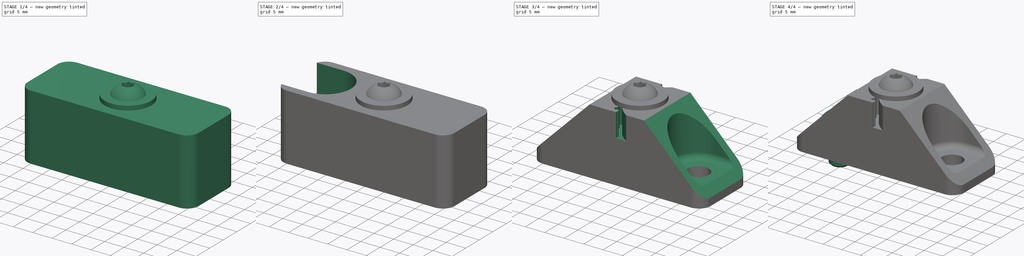
[diagram: build sequence overview — one tinted view per stage of 4, left to right]
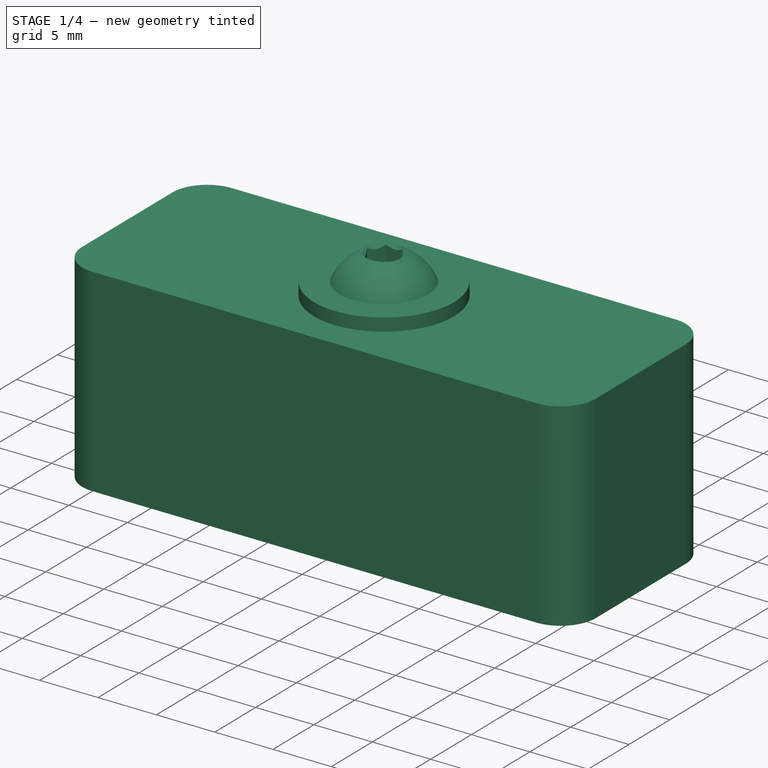
[diagram: stage 1 of 4 — iso view after this stage's code; geometry added in this stage tinted green]
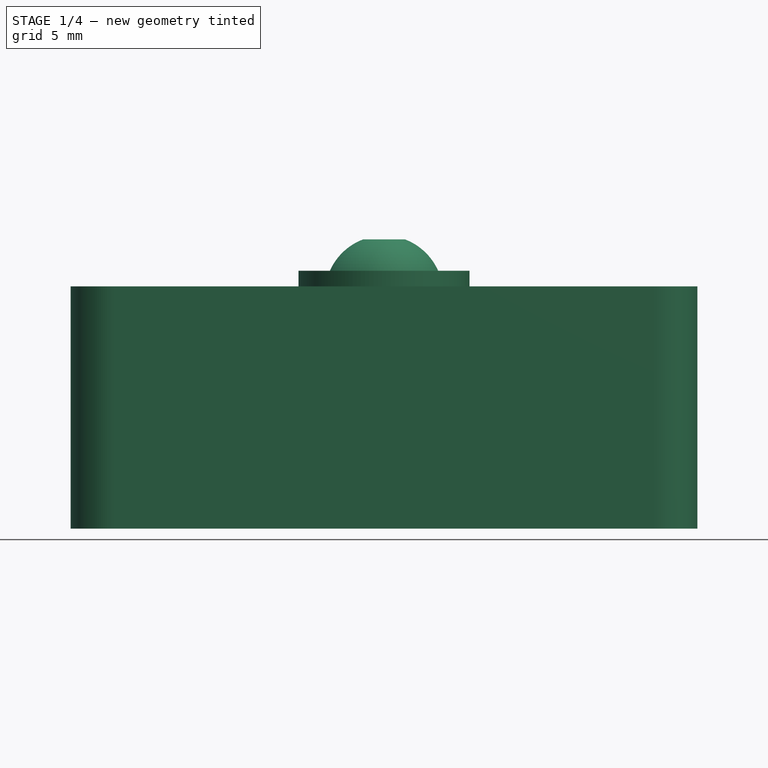
[diagram: stage 1 of 4 — front view after this stage's code; geometry added in this stage tinted green]
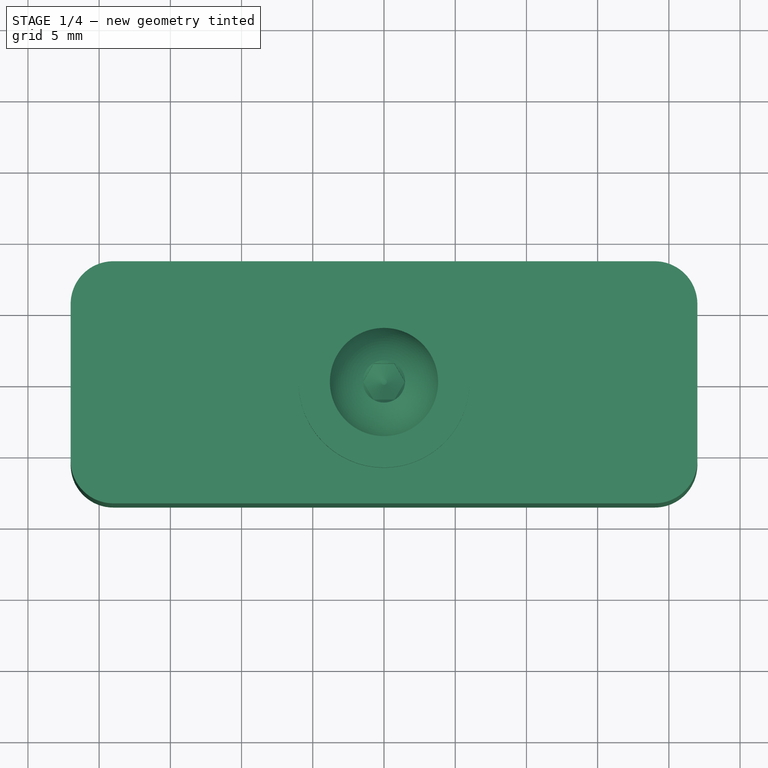
[diagram: stage 1 of 4 — top view after this stage's code; geometry added in this stage tinted green]
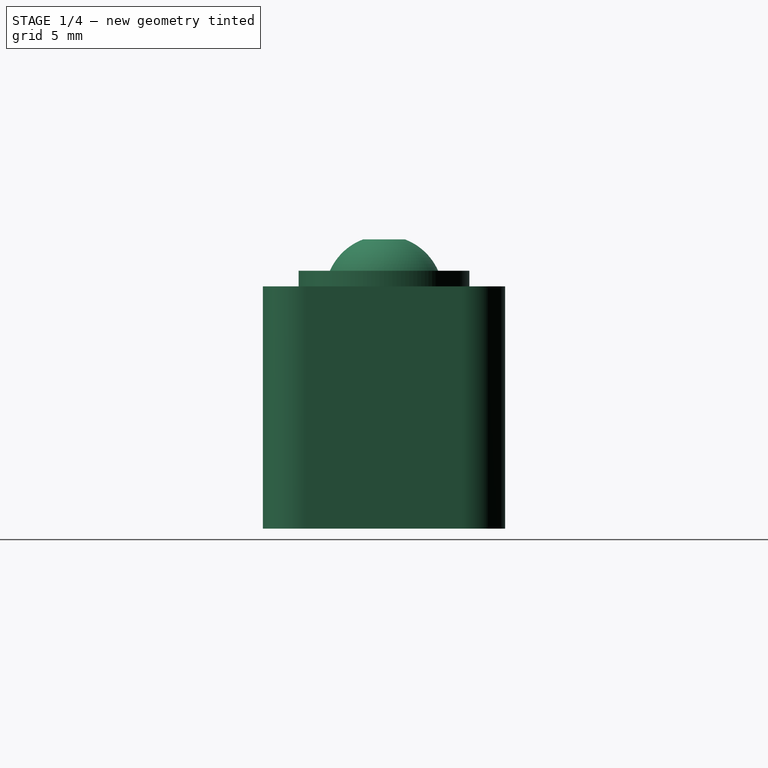
[diagram: stage 1 of 4 — right view after this stage's code; geometry added in this stage tinted green]
FCSTD DOCUMENT  (FreeCAD 0.20R29177 +426 (Git))
Label: BeltRetainerRear
License: All rights reserved
LicenseURL: http://en.wikipedia.org/wiki/All_rights_reserved
objects: Sketcher::SketchObject×7, Part::FeaturePython×6, App::DocumentObjectGroup×4, PartDesign::Pocket×3, PartDesign::Mirrored×3, PartDesign::CoordinateSystem×2, App::FeaturePython×1, PartDesign::Pad×1, PartDesign::Hole×1, PartDesign::SubtractivePipe×1, PartDesign::Line×1, PartDesign::PolarPattern×1, PartDesign::MultiTransform×1, PartDesign::Body×1, App::Part×1
note: 34 computed .brp shape members not serialized (recipe doc carries the construction recipe); baked Part::Feature solids carry a one-line shape summary decoded from their .brp

FEATURE [App::DocumentObjectGroup] Parts
FEATURE [PartDesign::CoordinateSystem] LCS_Origin
  AttacherType = Attacher::AttachEngine3D
  MapMode = 2
  Support = -> [X_Axis]
FEATURE [App::FeaturePython] Variables  # WARN: FeaturePython — macro-defined, semantics opaque (R4)
  BaseHeight = 4
  BeltCurveRadius = 10.5
  RibThickness = 2
  Type = App::PropertyContainer
FEATURE [App::DocumentObjectGroup] Constraints
FEATURE [App::DocumentObjectGroup] Configurations
FEATURE [Sketcher::SketchObject] Sketch
  FullyConstrained = true
  MapMode = 5
  Support = -> [XY_Plane001]
  sketch-geometry (10):
    g0: ArcOfCircle CenterX=-19 CenterY=5.5 CenterZ=0 NormalX=0 NormalY=0 NormalZ=1 AngleXU=0 Radius=3 StartAngle=1.5708 EndAngle=3.14159
    g1: ArcOfCircle CenterX=19 CenterY=5.5 CenterZ=0 NormalX=0 NormalY=0 NormalZ=1 AngleXU=0 Radius=3 StartAngle=0 EndAngle=1.5708
    g2: ArcOfCircle CenterX=19 CenterY=-5.5 CenterZ=0 NormalX=0 NormalY=0 NormalZ=1 AngleXU=0 Radius=3 StartAngle=4.71239 EndAngle=6.28319
    g3: LineSegment StartX=19 StartY=-8.5 StartZ=0 EndX=-19 EndY=-8.5 EndZ=0
    g4: ArcOfCircle CenterX=-19 CenterY=-5.5 CenterZ=0 NormalX=0 NormalY=0 NormalZ=1 AngleXU=0 Radius=3 StartAngle=3.14159 EndAngle=4.71239
    g5: LineSegment StartX=-22 StartY=-5.5 StartZ=0 EndX=-22 EndY=5.5 EndZ=0
    g6: GeomPoint X=-22 Y=8.5 Z=0
    g7: GeomPoint X=22 Y=-8.5 Z=0
    g8: LineSegment StartX=-19 StartY=8.5 StartZ=0 EndX=19 EndY=8.5 EndZ=0
    g9: LineSegment StartX=22 StartY=5.5 StartZ=0 EndX=22 EndY=-5.5 EndZ=0
  constraints (23):
    c: Tangent(g0,g8) = 1.5708
    c: Tangent(g9,g2) = 1.5708
    c: Tangent(g2,g3) = 1.5708
    c: Tangent(g3,g4) = 1.5708
    c: Tangent(g4,g5) = 1.5708
    c: Tangent(g5,g0) = 1.5708
    c: Horizontal(g3)
    c: Vertical(g5)
    c: Equal(g0,g1)
    c: Equal(g1,g2)
    c: Equal(g2,g4)
    c: PointOnObject(g6,g5)
    c: PointOnObject(g7,g3)
    c: Radius(g1) = 3
    c: DistanceX(g4,g9) = 44  'Width'
    c: Horizontal(g8)
    c: PointOnObject(g6,g8)
    c: Vertical(g9)
    c: PointOnObject(g7,g9)
    c: Tangent(g9,g1) = 1.5708
    c: Tangent(g8,g1) = 1.5708
    c: Symmetric(g2,g0,g-1)
    c: DistanceY(g3,g0) = 17  'Height'
FEATURE [PartDesign::Pad] Pad
  Direction = (0,0,1)
  Length = 17
  Length2 = 10
  Profile = -> Sketch
  ReferenceAxis = -> Sketch [N_Axis]
  Type = 0
FEATURE [PartDesign::Body] Body
  Group = -> [Sketch,Pad,Sketch001,Hole,Sketch002,Pocket,Sketch003,Sketch004,SubtractivePipe,MultiTransform,Mirrored,PolarPattern,LCS_1,DatumLine,Mirrored001,Sketch005,Pocket001,Mirrored002,Sketch006,Pocket002]
  Origin = -> Origin001
  Tip = -> Pocket002
FEATURE [Part::FeaturePython] Washer001  label="M4-Washer"  # Fasteners workbench fastener (typed FeaturePython)
  Placement = pos=(0,0,17) rot=(0,0,1;0rad)
  diameter = 3
  invert = false
  matchOuter = false
  offset = 0
  type = 6
FEATURE [Part::FeaturePython] Screw001  label="M4x6-Screw"  # Fasteners workbench fastener (typed FeaturePython)
  Placement = pos=(0,0,18.1) rot=(0,0,1;0rad)
  diameter = 2
  invert = false
  leftHanded = false
  length = 0
  lengthCustom = 6
  matchOuter = false
  offset = 0
  thread = false
  type = 40
FEATURE [App::DocumentObjectGroup] Fasteners
  Group = -> [Washer,Screw,Array_Washer,Array_Screw,Washer001,Screw001]
FEATURE [App::Part] Assembly
  AssemblyType = Part::Link
  Group = -> [LCS_Origin,Variables,Constraints,Configurations,Body,Fasteners,Washer,Array_Washer,Screw,Array_Screw,Washer001,Screw001]
  Origin = -> Origin
  Type = Assembly
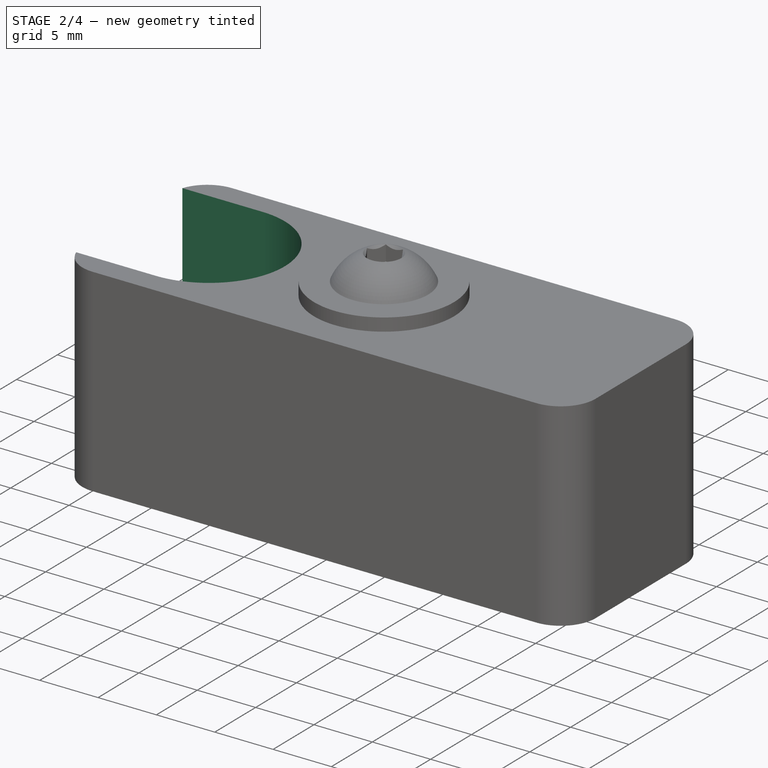
[diagram: stage 2 of 4 — iso view after this stage's code; geometry added in this stage tinted green]
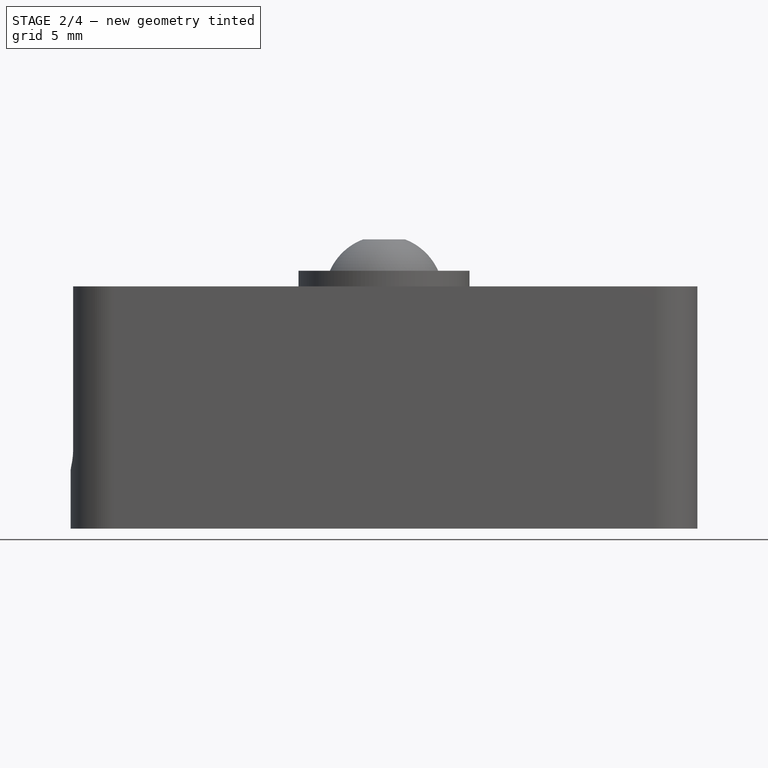
[diagram: stage 2 of 4 — front view after this stage's code; geometry added in this stage tinted green]
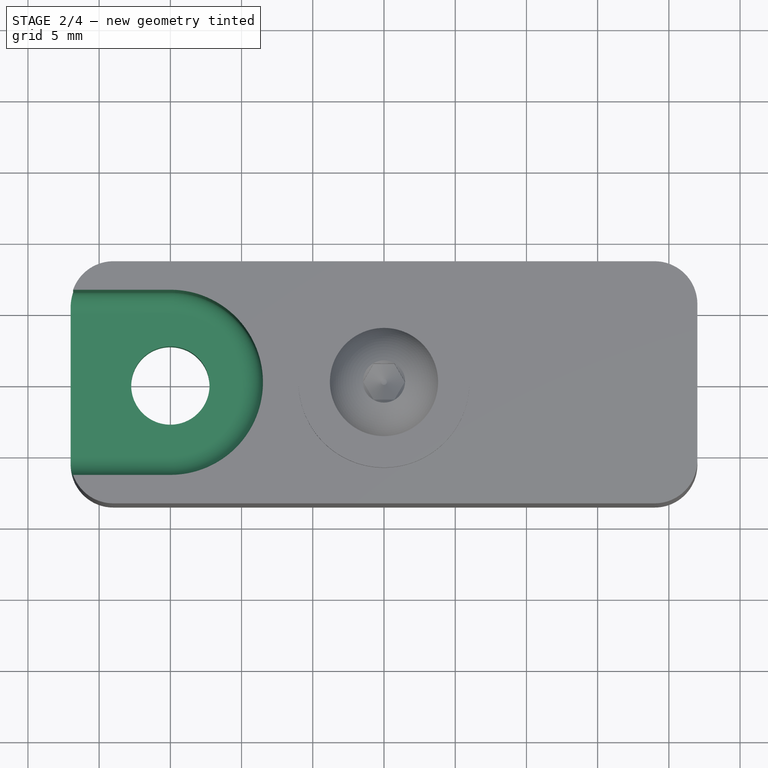
[diagram: stage 2 of 4 — top view after this stage's code; geometry added in this stage tinted green]
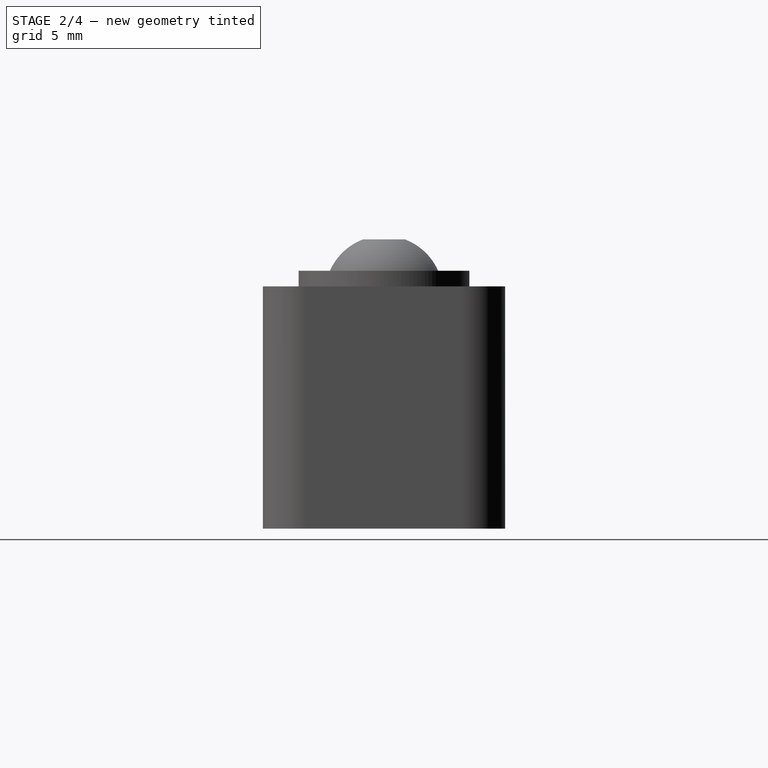
[diagram: stage 2 of 4 — right view after this stage's code; geometry added in this stage tinted green]
FEATURE [Sketcher::SketchObject] Sketch001
  AttachmentOffset = pos=(0,0,4) rot=(0,0,1;0rad)
  FullyConstrained = true
  MapMode = 2
  Placement = pos=(0,0,4) rot=(0,0,1;0rad)
  Support = -> [XY_Plane]
  expr: .AttachmentOffset.Base.z = <<Variables>>.BaseHeight
  sketch-geometry (2):
    g0: Circle CenterX=-15 CenterY=0 CenterZ=0 NormalX=0 NormalY=0 NormalZ=1 AngleXU=0 Radius=1
    g1: Circle CenterX=15 CenterY=0 CenterZ=0 NormalX=0 NormalY=0 NormalZ=1 AngleXU=0 Radius=1
  constraints (5):
    c: PointOnObject(g0,g-1)
    c: Symmetric(g0,g1,g-1)
    c: Diameter(g1) = 2
    c: Equal(g1,g0)
    c: DistanceX(g0,g-1) = 15  'HoleOffset'
FEATURE [PartDesign::Hole] Hole  label="MountHoles"
  BaseFeature = -> Pad
  CustomThreadClearance = 0
  Depth = 25
  DepthType = 0
  Diameter = 5.5
  DrillForDepth = false
  DrillPoint = 1
  DrillPointAngle = 118
  HoleCutCountersinkAngle = 90
  HoleCutCustomValues = false
  HoleCutDepth = 0
  HoleCutDiameter = 6.1
  HoleCutType = 0
  ModelThread = false
  Profile = -> Sketch001
  Tapered = false
  TaperedAngle = 90
  ThreadClass = 0
  ThreadDepth = 25
  ThreadDepthType = 0
  ThreadDirection = 0
  ThreadFit = 0
  ThreadSize = 13
  ThreadType = 1
  Threaded = false
  UseCustomThreadClearance = false
FEATURE [Part::FeaturePython] Array_Washer  label="Array_M5-Washer"  # Draft array (typed FeaturePython)
  ArraySteps = 0
  ArrayType = Circular Array
  Axis = LCS_Origin.Z
  Count = 2
  ElementCount = 2
  FullAngle = 360
  IntervalAngle = 180
  LinearSteps = 0
  PlacementList = 2 placements: [(-15,0,4),(15,-1.83697e-15,4)]
  ScaleList = (2) [(1,1,1),(1,1,1)]
  ShowElement = false
  SourceObject = -> Washer
FEATURE [Part::FeaturePython] Array_Screw  label="Array_M5x12-Screw"  # Draft array (typed FeaturePython)
  ArraySteps = 0
  ArrayType = Circular Array
  Axis = LCS_Origin.Z
  Count = 2
  ElementCount = 2
  FullAngle = 360
  IntervalAngle = 180
  LinearSteps = 0
  PlacementList = 2 placements: [(-15,0,5.1),(15,-1.83697e-15,5.1)]
  ScaleList = (2) [(1,1,1),(1,1,1)]
  ShowElement = false
  SourceObject = -> Screw
FEATURE [Sketcher::SketchObject] Sketch003
  AttachmentOffset = pos=(0,4,0) rot=(0,0,1;0rad)
  FullyConstrained = true
  MapMode = 5
  Placement = pos=(0,-9e-16,4) rot=(1,0,0;1.5708rad)
  Support = -> [XZ_Plane001]
  expr: .AttachmentOffset.Base.y = <<Variables>>.BaseHeight
  expr: Constraints[13] = <<Sketch001>>.Constraints.HoleOffset
  expr: Constraints[14] = <<Sketch>>.Constraints.Height / 2 - <<Variables>>.RibThickness * 1mm
  expr: Constraints[15] = <<Pad>>.Length
  sketch-geometry (9):
    g0: LineSegment StartX=-10 StartY=0 StartZ=0 EndX=-15 EndY=0 EndZ=0
    g1: LineSegment StartX=-15 StartY=0 StartZ=0 EndX=-15 EndY=17 EndZ=0
    g2: LineSegment StartX=-15 StartY=17 StartZ=0 EndX=-8.5 EndY=17 EndZ=0
    g3: LineSegment StartX=-8.5 StartY=17 StartZ=0 EndX=-8.5 EndY=1.5 EndZ=0
    g4: ArcOfCircle CenterX=-10 CenterY=1.5 CenterZ=0 NormalX=0 NormalY=0 NormalZ=1 AngleXU=0 Radius=1.5 StartAngle=4.71239 EndAngle=6.28319
    g5: GeomPoint X=-8.5 Y=0 Z=0
    g6: LineSegment StartX=-15 StartY=17 StartZ=0 EndX=-16 EndY=17 EndZ=0
    g7: LineSegment StartX=-16 StartY=17 StartZ=0 EndX=-16 EndY=0 EndZ=0
    g8: LineSegment StartX=-16 StartY=0 StartZ=0 EndX=-15 EndY=0 EndZ=0
  constraints (24):
    c: Coincident(g0,g1)
    c: Coincident(g1,g2)
    c: Coincident(g2,g3)
    c: Horizontal(g0)
    c: Horizontal(g2)
    c: Vertical(g1)
    c: Vertical(g3)
    c: PointOnObject(g5,g-1)
    c: PointOnObject(g5,g3)
    c: PointOnObject(g5,g0)
    c: Tangent(g3,g4) = 1.5708
    c: Tangent(g0,g4) = 1.5708
    c: Radius(g4) = 1.5
    c: DistanceX(g0,g-1) = 15
    c: DistanceX(g2,g2) = 6.5
    c: DistanceY(g1,g1) = 17
    c: Coincident(g2,g6)
    c: Horizontal(g6)
    c: Coincident(g6,g7)
    c: PointOnObject(g7,g-1)
    c: Vertical(g7)
    c: Coincident(g7,g8)
    c: Coincident(g8,g0)
    c: DistanceX(g8,g8) = 1
FEATURE [Sketcher::SketchObject] Sketch004
  AttachmentOffset = pos=(0,0,21) rot=(0,0,1;0rad)
  FullyConstrained = true
  MapMode = 5
  Placement = pos=(0,0,21) rot=(0,0,1;0rad)
  Support = -> [XY_Plane001]
  expr: .AttachmentOffset.Base.z = <<Variables>>.BaseHeight * 1mm + <<Sketch>>.Constraints.Height
  expr: Constraints[7] = <<Sketch001>>.Constraints.HoleOffset
  expr: Constraints[8] = <<Sketch>>.Constraints.Height - <<Variables>>.RibThickness * 2mm
  sketch-geometry (5):
    g0: ArcOfCircle CenterX=-15 CenterY=0 CenterZ=0 NormalX=0 NormalY=0 NormalZ=1 AngleXU=0 Radius=6.5 StartAngle=4.71239 EndAngle=7.85398
    g1: LineSegment StartX=-15 StartY=6.5 StartZ=0 EndX=-28 EndY=6.5 EndZ=0
    g2: LineSegment StartX=-28 StartY=-6.5 StartZ=0 EndX=-15 EndY=-6.5 EndZ=0
    g3: LineSegment StartX=-15 StartY=-6.5 StartZ=0 EndX=-15 EndY=6.5 EndZ=0
    g4: LineSegment StartX=-28 StartY=6.5 StartZ=0 EndX=-28 EndY=-6.5 EndZ=0
  constraints (13):
    c: PointOnObject(g0,g-1)
    c: Horizontal(g1)
    c: Horizontal(g2)
    c: Tangent(g1,g0) = -1.5708
    c: Tangent(g2,g0) = -1.5708
    c: Coincident(g0,g3)
    c: Coincident(g3,g0)
    c: DistanceX(g0,g-1) = 15
    c: DistanceY(g3,g3) = 13
    c: Equal(g3,g2)
    c: Coincident(g4,g1)
    c: Coincident(g4,g2)
    c: Vertical(g4)
FEATURE [PartDesign::CoordinateSystem] LCS_1  label="LCS_BeltCenter"
  AttacherType = Attacher::AttachEngine3D
  AttachmentOffset = pos=(7.5,0,17) rot=(0,0,1;0rad)
  MapMode = 2
  Placement = pos=(7.5,0,17) rot=(0,0,1;0rad)
  Support = -> [XY_Plane001]
  expr: .AttachmentOffset.Base.z = <<Pad>>.Length
FEATURE [Sketcher::SketchObject] Sketch002
  AttachmentOffset = pos=(-10.5,0,-6) rot=(0,0,1;0rad)
  FullyConstrained = true
  MapMode = 2
  Placement = pos=(-3,0,11) rot=(0,0,1;0rad)
  Support = -> [LCS_1]
  expr: .AttachmentOffset.Base.x = <<Variables>>.BeltCurveRadius * -1
  expr: Constraints[35] = <<Variables>>.BeltCurveRadius
  sketch-geometry (13):
    g0: ArcOfCircle CenterX=-0.0981633 CenterY=-1.3406 CenterZ=0 NormalX=0 NormalY=0 NormalZ=1 AngleXU=0 Radius=1.05 StartAngle=1.85527 EndAngle=2.42562
    g1: ArcOfCircle CenterX=-0.437669 CenterY=-1.04524 CenterZ=0 NormalX=0 NormalY=0 NormalZ=1 AngleXU=0 Radius=0.6 StartAngle=2.42562 EndAngle=3.23687
    g2: ArcOfCircle CenterX=-0.434948 CenterY=-0.188828 CenterZ=0 NormalX=0 NormalY=0 NormalZ=1 AngleXU=0 Radius=0.15 StartAngle=4.99686 EndAngle=6.28319
    g3: LineSegment StartX=-0.284948 StartY=-0.188828 StartZ=0 EndX=-0.284948 EndY=0 EndZ=0
    g4: LineSegment StartX=-0.437669 StartY=-1.04524 StartZ=0 EndX=0.657342 EndY=-0.940598 EndZ=0
    g5: ArcOfCircle CenterX=10.5 CenterY=0 CenterZ=0 NormalX=0 NormalY=0 NormalZ=1 AngleXU=0 Radius=9.8875 StartAngle=3.14159 EndAngle=3.23687
    g6: LineSegment StartX=0.657342 StartY=-0.940598 StartZ=0 EndX=0.567455 EndY=0 EndZ=0
    g7: LineSegment StartX=-0.284948 StartY=0 StartZ=0 EndX=0.612501 EndY=1.2e-15 EndZ=0
    g8: LineSegment StartX=-1.03495 StartY=-1.10232 StartZ=0 EndX=0.657342 EndY=-1.10232 EndZ=0
    g9: LineSegment StartX=0.657342 StartY=-1.10232 StartZ=0 EndX=0.657342 EndY=-0.940598 EndZ=0
    g10: ArcOfCircle CenterX=10.5 CenterY=0 CenterZ=0 NormalX=0 NormalY=0 NormalZ=1 AngleXU=0 Radius=11.5875 StartAngle=3.14159 EndAngle=3.23687
    g11: LineSegment StartX=-0.284948 StartY=-0.188828 StartZ=0 EndX=-0.205229 EndY=-1.02303 EndZ=0
    g12: ArcOfCircle CenterX=10.5 CenterY=0 CenterZ=0 NormalX=0 NormalY=0 NormalZ=1 AngleXU=0 Radius=10.5 StartAngle=3.14159 EndAngle=3.23687
  constraints (38):
    c: Radius(g0) = 1.05
    c: Tangent(g1,g0) = -1.5708
    c: Radius(g1) = 0.6
    c: Tangent(g2,g0) = 1.5708
    c: Radius(g2) = 0.15
    c: Tangent(g3,g2) = -1.5708
    c: Vertical(g3)
    c: Coincident(g4,g1)
    c: DistanceY(g0,g4) = 0.4
    c: PointOnObject(g1,g4)
    c: DistanceX(g1,g2) = 0.75
    c: PointOnObject(g5,g-1)
    c: Tangent(g6,g5) = 1.5708
    c: Coincident(g7,g3)
    c: Horizontal(g8)
    c: Coincident(g9,g8)
    c: Coincident(g9,g5)
    c: Vertical(g9)
    c: Distance(g5,g1) = 1.7
    c: Angle(g-1,g4) = 0.0952741  'HalfToothAngle'
    c: PointOnObject(g6,g7)
    c: PointOnObject(g3,g-1)
    c: Coincident(g5,g7)
    c: PointOnObject(g5,g-1)
    c: Coincident(g4,g5)
    c: Coincident(g10,g5)
    c: Coincident(g8,g1)
    c: Tangent(g10,g1) = -1.5708
    c: Coincident(g11,g2)
    c: PointOnObject(g11,g4)
    c: Perpendicular(g4,g11)
    c: Coincident(g12,g5)
    c: PointOnObject(g12,g4)
    c: Distance(g12,g11) = 0.254
    c: Coincident(g12,g-1)
    c: Radius(g12) = 10.5
    c: Distance(g12,g12) = 1
    c: PointOnObject(g10,g-1)
FEATURE [PartDesign::Pocket] Pocket  label="GT2_HalfTooth"
  BaseFeature = -> Hole
  Direction = (0,0,-1)
  Length = 5
  Length2 = 5
  Profile = -> Sketch002
  ReferenceAxis = -> Sketch002 [N_Axis]
  Reversed = true
  Type = 1
FEATURE [PartDesign::SubtractivePipe] SubtractivePipe  label="ScrewPocket"
  AuxilleryCurvelinear = true
  AuxillerySpineTangent = false
  BaseFeature = -> Pocket
  Binormal = (0,0,0)
  Mode = 0
  Profile = -> Sketch003
  Spine = -> Sketch004
  SpineTangent = false
  Transformation = 0
  Transition = 0
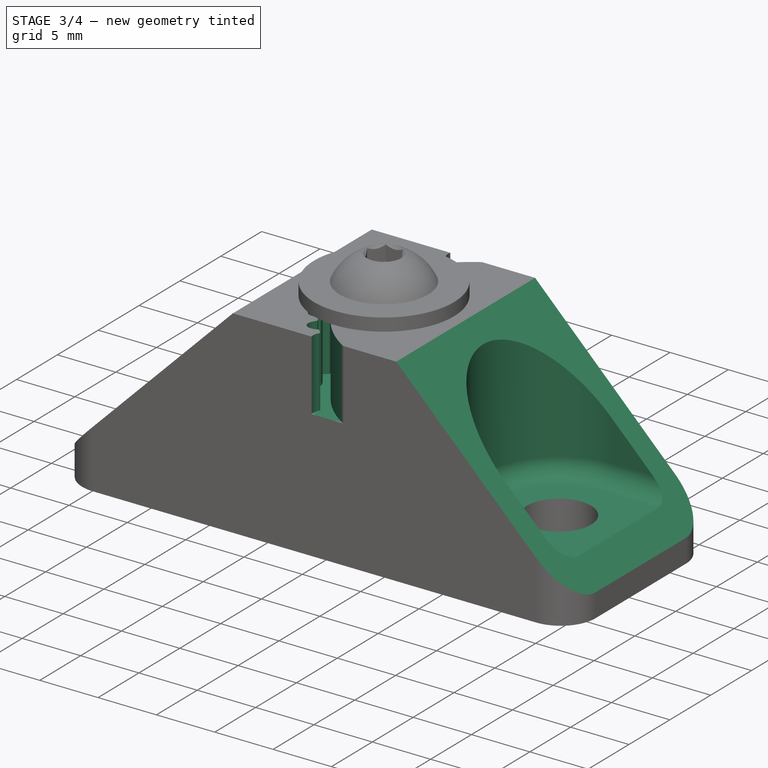
[diagram: stage 3 of 4 — iso view after this stage's code; geometry added in this stage tinted green]
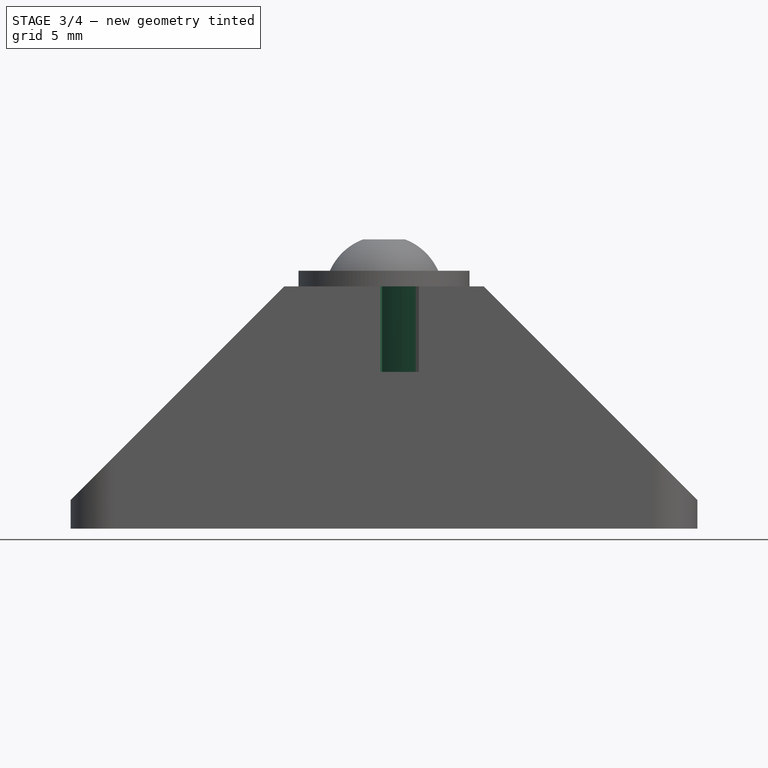
[diagram: stage 3 of 4 — front view after this stage's code; geometry added in this stage tinted green]
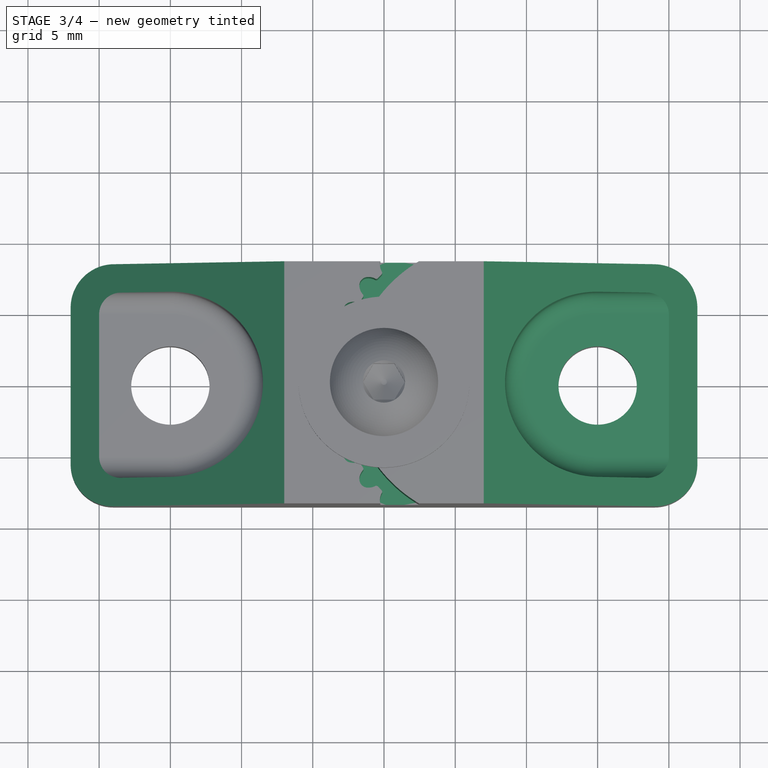
[diagram: stage 3 of 4 — top view after this stage's code; geometry added in this stage tinted green]
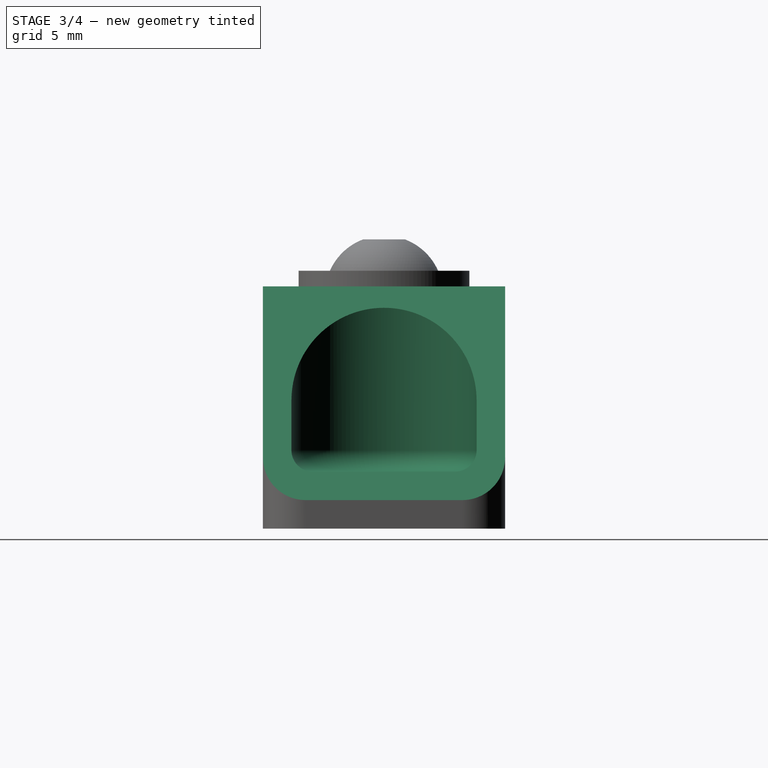
[diagram: stage 3 of 4 — right view after this stage's code; geometry added in this stage tinted green]
FEATURE [PartDesign::Mirrored] Mirrored
  MirrorPlane = -> Sketch002 [H_Axis]
FEATURE [PartDesign::Line] DatumLine
  AttacherType = Attacher::AttachEngineLine
  Length = 20
  MapMode = 18
  Placement = pos=(7.5,0,17) rot=(0,0,1;0rad)
  ResizeMode = 0
  Support = -> [LCS_1]
FEATURE [PartDesign::PolarPattern] PolarPattern
  Angle = 98.2585
  Axis = -> DatumLine
  Occurrences = 10
  expr: Angle = Sketch002.Constraints.HalfToothAngle * 2 * 9
FEATURE [PartDesign::Mirrored] Mirrored001
  MirrorPlane = -> Sketch002 [H_Axis]
FEATURE [PartDesign::MultiTransform] MultiTransform
  BaseFeature = -> SubtractivePipe
  Originals = -> [Pocket]
  Transformations = -> [Mirrored,PolarPattern,Mirrored001]
FEATURE [Sketcher::SketchObject] Sketch005
  FullyConstrained = true
  MapMode = 5
  Placement = pos=(0,0,0) rot=(1,0,0;1.5708rad)
  Support = -> [XZ_Plane001]
  expr: Constraints[7] = <<Pad>>.Length + 2mm
  expr: Constraints[8] = <<Sketch>>.Constraints.Width / 2 + 1mm
  sketch-geometry (3):
    g0: LineSegment StartX=-23 StartY=1 StartZ=0 EndX=-5 EndY=19 EndZ=0
    g1: LineSegment StartX=-5 StartY=19 StartZ=0 EndX=-23 EndY=19 EndZ=0
    g2: LineSegment StartX=-23 StartY=19 StartZ=0 EndX=-23 EndY=1 EndZ=0
  constraints (9):
    c: Coincident(g0,g1)
    c: Horizontal(g1)
    c: Coincident(g1,g2)
    c: Coincident(g2,g0)
    c: Vertical(g2)
    c: Equal(g1,g2)
    c: DistanceX(g1,g1) = 18
    c: DistanceY(g-1,g1) = 19
    c: DistanceX(g1,g-1) = 23
FEATURE [PartDesign::Pocket] Pocket001  label="Chamfer"
  BaseFeature = -> MultiTransform
  Direction = (0,1,2e-16)
  Length = 5
  Length2 = 5
  Midplane = true
  Profile = -> Sketch005
  ReferenceAxis = -> Sketch005 [N_Axis]
  Type = 1
FEATURE [PartDesign::Mirrored] Mirrored002  label="ScrewPocketMirror"
  BaseFeature = -> Pocket001
  MirrorPlane = -> Sketch003 [V_Axis]
  Originals = -> [SubtractivePipe,Pocket001]
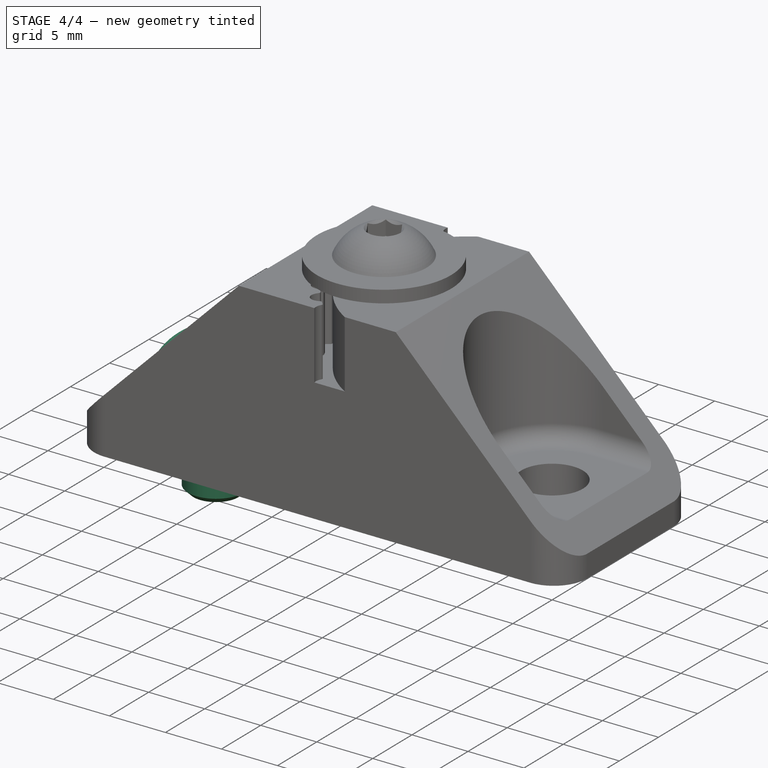
[diagram: stage 4 of 4 — iso view after this stage's code; geometry added in this stage tinted green]
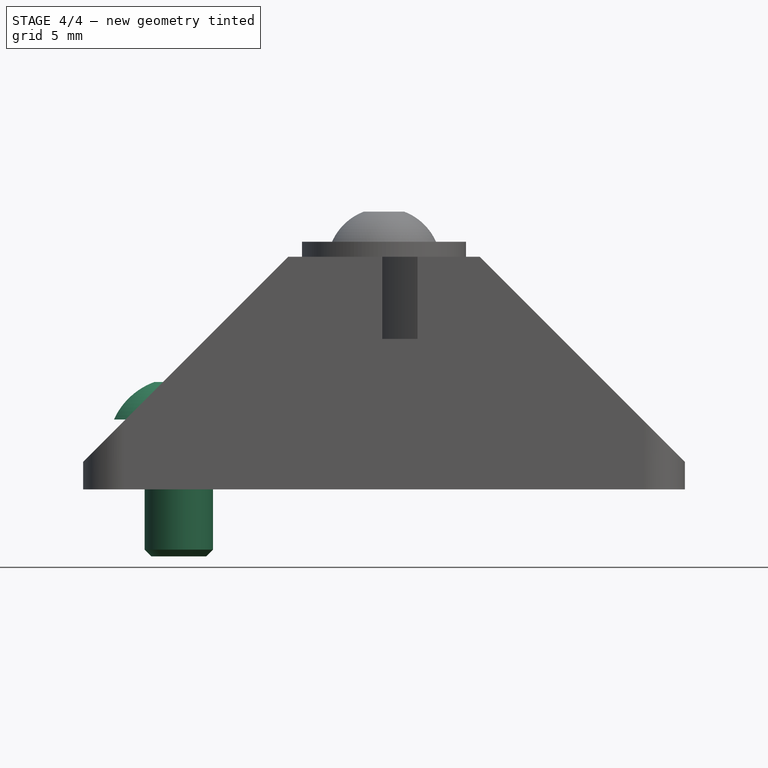
[diagram: stage 4 of 4 — front view after this stage's code; geometry added in this stage tinted green]
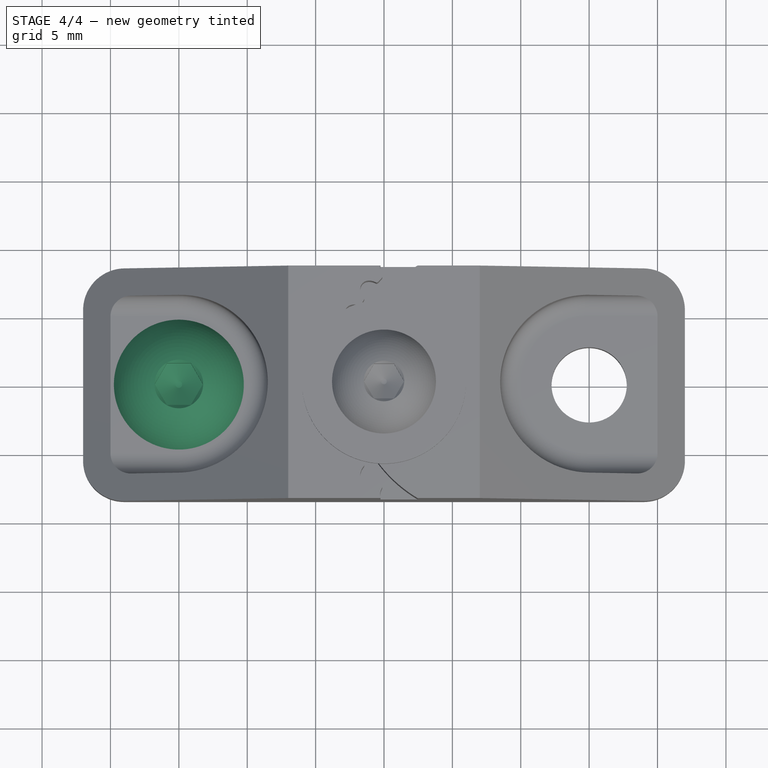
[diagram: stage 4 of 4 — top view after this stage's code; geometry added in this stage tinted green]
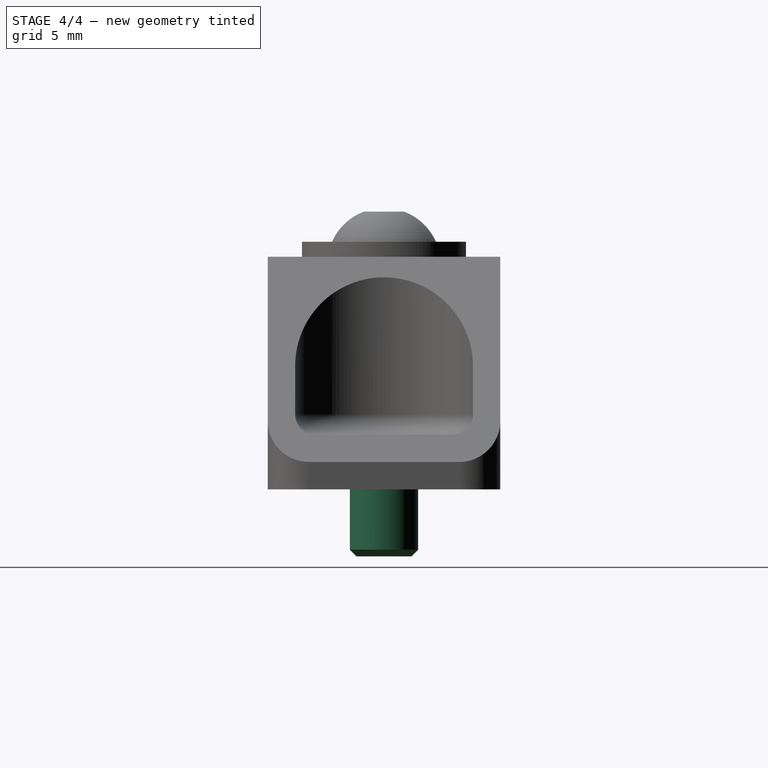
[diagram: stage 4 of 4 — right view after this stage's code; geometry added in this stage tinted green]
FEATURE [Part::FeaturePython] Washer  label="M5-Washer"  # Fasteners workbench fastener (typed FeaturePython)
  Placement = pos=(-15,0,4) rot=(0,0,1;0rad)
  baseObject = -> Sketch001 [Edge1]
  diameter = 6
  invert = false
  matchOuter = false
  offset = 0
  type = 3
FEATURE [Part::FeaturePython] Screw  label="M5x10-Screw"  # Fasteners workbench fastener (typed FeaturePython)
  Placement = pos=(-15,0,5.1) rot=(0,0,1;0rad)
  baseObject = -> Washer [Edge1]
  diameter = 3
  invert = false
  leftHanded = false
  length = 1
  lengthCustom = 10
  matchOuter = false
  offset = 0
  thread = false
  type = 40
FEATURE [Sketcher::SketchObject] Sketch006
  AttachmentOffset = pos=(0,0,17) rot=(0,0,1;0rad)
  FullyConstrained = true
  MapMode = 5
  Placement = pos=(0,0,17) rot=(0,0,1;0rad)
  Support = -> [XY_Plane001]
  expr: .AttachmentOffset.Base.z = <<Pad>>.Length
  sketch-geometry (1):
    g0: Circle CenterX=0 CenterY=0 CenterZ=0 NormalX=0 NormalY=0 NormalZ=1 AngleXU=0 Radius=1.85
  constraints (2):
    c: Diameter(g0) = 3.7
    c: Coincident(g0,g-1)
FEATURE [PartDesign::Pocket] Pocket002  label="BeltScrewHole"
  BaseFeature = -> Mirrored002
  Direction = (0,0,-1)
  Length = 10
  Length2 = 5
  Profile = -> Sketch006
  ReferenceAxis = -> Sketch006 [N_Axis]
  Type = 0
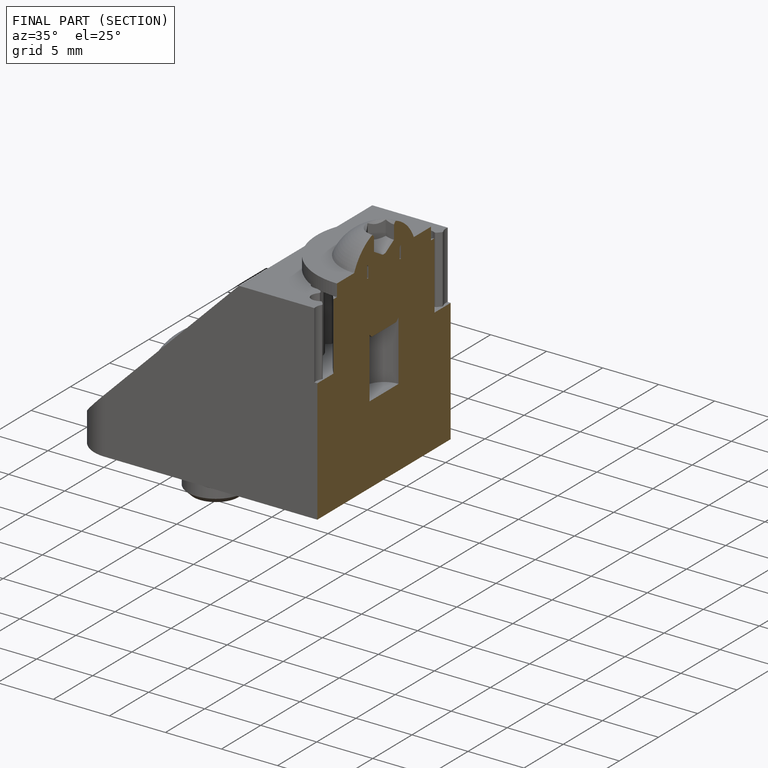
[diagram: finished part — half-section view (interior)]
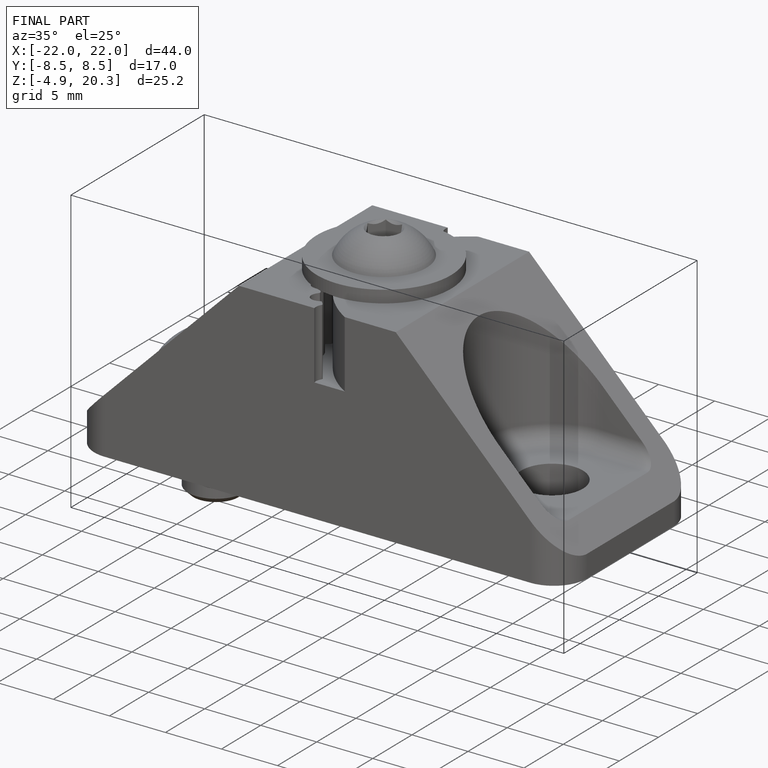
[diagram: finished part — iso view with bounding-box wireframe]
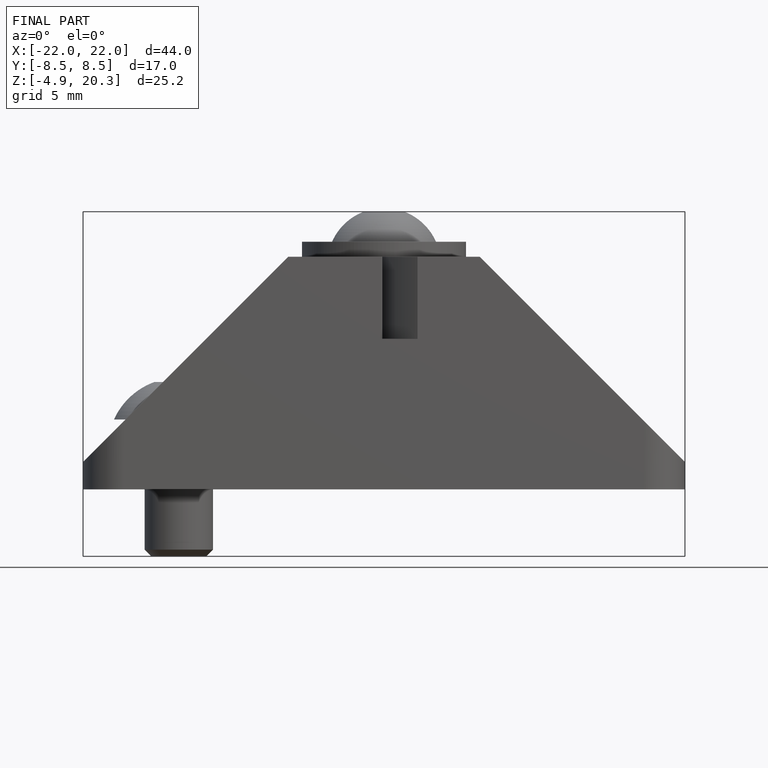
[diagram: finished part — front view with bounding-box wireframe]
